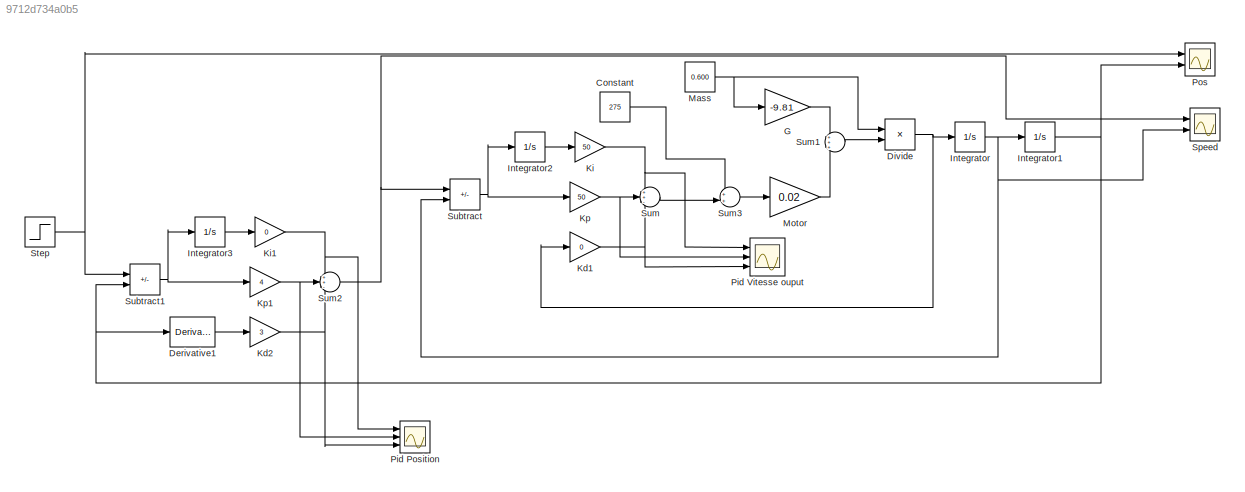
MODEL slx_9712d734a0b5
KIND model
CONFIG AbsTol = auto
CONFIG EnableMultiTasking = off
CONFIG FixedStep = auto
CONFIG MaxStep = auto
CONFIG MinStep = auto
CONFIG RelTol = 1e-3
CONFIG SampleTimeConstraint = Unconstrained
CONFIG SolverName = VariableStepAuto
CONFIG StartTime = 0.0
CONFIG StopTime = 10.0
BLOCK [Constant] Constant
  Value = 275
BLOCK [Derivative] Derivative1
BLOCK [Product] Divide
  Inputs = /*
  Ports = [2, 1]
BLOCK [Gain] G
  Gain = -9.81
BLOCK [Integrator] Integrator
  Ports = [1, 1]
BLOCK [Integrator] Integrator1
  Ports = [1, 1]
BLOCK [Integrator] Integrator2
  Ports = [1, 1]
BLOCK [Integrator] Integrator3
  Ports = [1, 1]
BLOCK [Gain] Kd1
  Gain = 0
BLOCK [Gain] Kd2
  Gain = 3
BLOCK [Gain] Ki
  Gain = 50
BLOCK [Gain] Ki1
  Gain = 0
BLOCK [Gain] Kp
  Gain = 50
BLOCK [Gain] Kp1
  Gain = 4
BLOCK [Constant] Mass
  Value = 0.600
BLOCK [Gain] Motor
  Gain = 0.02
BLOCK [Scope] Pid Position
  Floating = off
  NumInputPorts = 3
  Ports = [3]
  ScopeSpecificationString = Simulink.scopes.TimeScopeBlockCfg('CurrentConfiguration', extmgr.ConfigurationSet(extmgr.Configuration('Core','General UI',true),extmgr.Configuration('Core','Source UI',true),extmgr.Configuration('Sources','WiredSimulink',true,'DataLoggingVariableName','ScopeData3'),extmgr.Configuration('Visuals','Time Domain',true,'SerializedDisplays',{struct('MinYLimReal','-0.73418','MaxYLimReal','4.53983','YLab...<+1429ch>
BLOCK [Scope] Pid Vitesse ouput
  Floating = off
  NumInputPorts = 3
  Ports = [3]
  ScopeSpecificationString = Simulink.scopes.TimeScopeBlockCfg('CurrentConfiguration', extmgr.ConfigurationSet(extmgr.Configuration('Core','General UI',true),extmgr.Configuration('Core','Source UI',true),extmgr.Configuration('Sources','WiredSimulink',true,'DataLoggingVariableName','ScopeData1'),extmgr.Configuration('Visuals','Time Domain',true,'SerializedDisplays',{struct('MinYLimReal','-74.64573','MaxYLimReal','230.69488','Y...<+1437ch>
BLOCK [Scope] Pos 
  Floating = off
  NumInputPorts = 2
  Ports = [2]
  ScopeSpecificationString = Simulink.scopes.TimeScopeBlockCfg('CurrentConfiguration', extmgr.ConfigurationSet(extmgr.Configuration('Core','General UI',true),extmgr.Configuration('Core','Source UI',true),extmgr.Configuration('Sources','WiredSimulink',true),extmgr.Configuration('Visuals','Time Domain',true,'SerializedDisplays',{struct('MinYLimReal','-0.16803','MaxYLimReal','1.12978','YLabelReal','','MinYLimMag','0.00000','MaxY...<+1394ch>
BLOCK [Scope] Speed
  Floating = off
  NumInputPorts = 2
  Ports = [2]
  ScopeSpecificationString = Simulink.scopes.TimeScopeBlockCfg('CurrentConfiguration', extmgr.ConfigurationSet(extmgr.Configuration('Core','General UI',true),extmgr.Configuration('Core','Source UI',true),extmgr.Configuration('Sources','WiredSimulink',true,'DataLoggingVariableName','ScopeData2'),extmgr.Configuration('Visuals','Time Domain',true,'SerializedDisplays',{struct('MinYLimReal','-0.68275','MaxYLimReal','4.52644','YLab...<+1432ch>
BLOCK [Step] Step
  SampleTime = 0
  Time = 5
BLOCK [Sum] Subtract
  IconShape = rectangular
  Inputs = +-
  Ports = [2, 1]
BLOCK [Sum] Subtract1
  IconShape = rectangular
  Inputs = +-
  Ports = [2, 1]
BLOCK [Sum] Sum
  Inputs = ++-
  Ports = [3, 1]
BLOCK [Sum] Sum1
  Inputs = +++
  Ports = [3, 1]
BLOCK [Sum] Sum2
  Inputs = ++-
  Ports = [3, 1]
BLOCK [Sum] Sum3
  Inputs = ++|
  Ports = [2, 1]
LINE Constant:1 -> Sum3:1
LINE Derivative1:1 -> Kd2:1
NET Divide:1 -> Integrator:1, Kd1:1
LINE G:1 -> Sum1:1
NET Integrator1:1 -> Derivative1:1, Pos :2, Subtract1:2
LINE Integrator2:1 -> Ki:1
LINE Integrator3:1 -> Ki1:1
NET Integrator:1 -> Integrator1:1, Speed:2, Subtract:2
NET Kd1:1 -> Pid Vitesse ouput:3, Sum:3
NET Kd2:1 -> Pid Position:3, Sum2:3
NET Ki1:1 -> Pid Position:1, Sum2:1
NET Ki:1 -> Pid Vitesse ouput:1, Sum:1
NET Kp1:1 -> Pid Position:2, Sum2:2
NET Kp:1 -> Pid Vitesse ouput:2, Sum:2
NET Mass:1 -> Divide:1, G:1
LINE Motor:1 -> Sum1:3
NET Step:1 -> Pos :1, Subtract1:1
NET Subtract1:1 -> Integrator3:1, Kp1:1
NET Subtract:1 -> Integrator2:1, Kp:1
LINE Sum1:1 -> Divide:2
NET Sum2:1 -> Speed:1, Subtract:1
LINE Sum3:1 -> Motor:1
LINE Sum:1 -> Sum3:2
note: NET lines group one-source signal fan-out (src -> all destinations, sorted); 1:1 wires keep LINE
